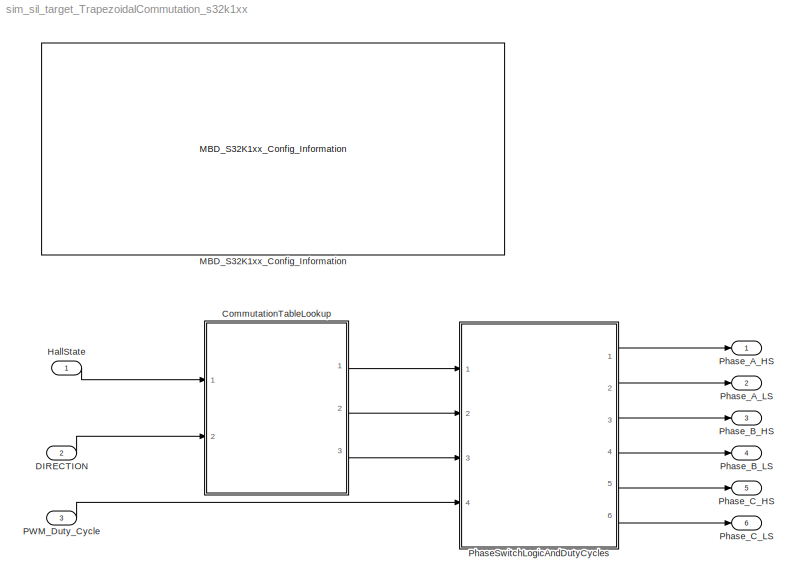
MODEL sim_sil_target_TrapezoidalCommutation_s32k1xx
KIND model
CONFIG InitFcn = mbd_s32k_consistency_checks(bdroot(gcs));
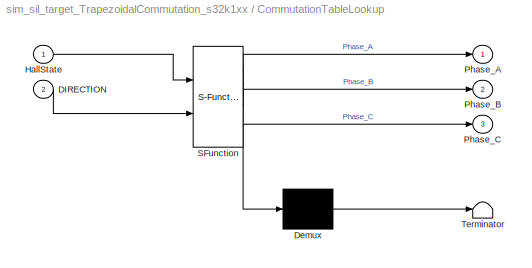
BLOCK [SubSystem] CommutationTableLookup
  ErrorFcn = Stateflow.Translate.translate
  PermitHierarchicalResolution = ExplicitOnly
  Ports = [2, 3]
  RequestExecContextInheritance = off
  SFBlockType = Chart
  SID = 24
  TreatAsAtomicUnit = on
  Variant = off
BLOCK [Demux] CommutationTableLookup/ Demux 
  Outputs = 1
  Ports = [1, 1]
  SID = 24::81
BLOCK [S-Function] CommutationTableLookup/ SFunction 
  EnableBusSupport = on
  FunctionName = sf_sfun
  PortCounts = [2 4]
  Ports = [2, 4]
  SFcnIsStateOwnerBlock = off
  SFunctionDeploymentMode = off
  SID = 24::80
  Tag = Stateflow S-Function sim_sil_target_TrapezoidalCommutation_s32k1xx 1
BLOCK [Terminator] CommutationTableLookup/ Terminator 
  SID = 24::82
BLOCK [Inport] CommutationTableLookup/DIRECTION
  IconDisplay = Port number
  Port = 2
  SID = 24::61
BLOCK [Inport] CommutationTableLookup/HallState
  IconDisplay = Port number
  SID = 24::50
BLOCK [Outport] CommutationTableLookup/Phase_A
  IconDisplay = Port number
  SID = 24::51
BLOCK [Outport] CommutationTableLookup/Phase_B
  IconDisplay = Port number
  Port = 2
  SID = 24::52
BLOCK [Outport] CommutationTableLookup/Phase_C
  IconDisplay = Port number
  Port = 3
  SID = 24::53
BLOCK [Inport] DIRECTION
  IconDisplay = Port number
  Port = 2
  SID = 22
BLOCK [Inport] HallState
  IconDisplay = Port number
  SID = 21
BLOCK [Reference] MBD_S32K1xx_Config_Information  REF=mbd_s32k1xx_ec_toolbox/MBD_S32K1xx_Config_Information
  ADC_PcrCheckEnDis = on
  AMMCLIB_PcrCheckEnDis = on
  CMP_PcrCheckEnDis = on
  CSEc_PcrCheckEnDis = on
  ConfigParams_PcrCheckEnDis = on
  FM_PcrCheckEnDis = on
  FTM_Dual_Edge_Inputs_PcrCheckEnDis = on
  FTM_Hall_Sensor_Inputs_PcrCheckEnDis = on
  FTM_Input_Edge_Inputs_PcrCheckEnDis = on
  FTM_PWM_PcrCheckEnDis = on
  FTM_Quadrature_Inputs_PcrCheckEnDis = on
  FlexCAN_PcrCheckEnDis = on
  FlexIO_PcrCheckEnDis = on
  GPIO_InputPcrCheckEnDis = on
  GPIO_OutputPcrCheckEnDis = on
  LIN_PcrCheckEnDis = on
  LPI2C_PcrCheckEnDis = on
  LPSPI_PcrCheckEnDis = on
  LPTMR_PcrCheckEnDis = on
  LPUART_PcrCheckEnDis = on
  ModelRef_PcrCheckEnDis = on
  PDB0_PcrCheckEnDis = on
  PIT_PcrCheckEnDis = on
  Ports = []
  Profile_PcrCheckEnDis = on
  RTC_PcrCheckEnDis = on
  SBC_PcrCheckEnDis = on
  SID = 1
  SourceBlock = mbd_s32k1xx_ec_toolbox/MBD_S32K1xx_Config_Information
  SourceType = MBDTBX_EC_S32K
  WDOG_PcrCheckEnDis = on
  config_params = target_mcu::S32K144-64KB_SRAM;;mcu_target_package::100-pin;;mcu_system_clock_freq::80;;mcu_xtal_freq::External 8;;mcu_steptick_timer::LPIT Channel 0;;mcu_steptick_prio::15;;ds_import_enable::on;;target_compiler::GCC;;target_memory::FLASH;;gcc_target_compile_opts::-c -mcpu=cortex-m4 -mthumb -mfloat-abi=hard -mfpu=fpv4-sp-d16 -O1 -g -gstrict-dwarf;;gcc_target_assemble_opts::-mcpu=cortex-m4 -mthumb -...<+1796ch>
  disp_str = Target : S32K144-64KB_SRAM\nPackage : 100-pin\nSystem clock : 80 MHz\nXTAL clock : External 8 MHz\nCompiler : GCC\nTarget Type : FLASH\nProcessor-In-Loop : (COM1, 57600, OpenSDA: E)\nStep Tick Interrupt Priority : 15
  ds_import_enable = on
  eDMA_PcrCheckEnDis = on
  gcc_target_assemble_opts = -mcpu=cortex-m4 -mthumb -mfloat-abi=hard -mfpu=fpv4-sp-d16 -g
  gcc_target_compile_opts = -mcpu=cortex-m4 -mthumb -mfloat-abi=hard -mfpu=fpv4-sp-d16 -O1 -g -gstrict-dwarf
  gcc_target_default_lcf = on
  gcc_target_link_opts = -mcpu=cortex-m4 -mthumb -mfloat-abi=hard -mfpu=fpv4-sp-d16
  gcc_target_user_lcf = S32K144_48_flash.ld
  ghs_target_assemble_opts = -cpu=cortexm4f -fpu=vfpv4_d16
  ghs_target_compile_opts = -cpu=cortexm4f -thumb -DARM_MATH_CM4 -fpu=vfpv4_d16 -fsingle -Ogeneral -Wundef -Wimplicit-int -Wshadow -Wtrigraphs --no_commons --gnu_asm -gnu99 -gdwarf-2 -G
  ghs_target_default_lcf = off
  ghs_target_link_opts = -cpu=cortexm4f -thumb -fpu=vfpv4_d16
  ghs_target_user_lcf = S32K144_48_flash.ld
  iar_target_assemble_opts = --cpu Cortex-M4F --thumb --fpu VFPv4_sp
  iar_target_compile_opts = --cpu=Cortex-M4F --thumb --fpu=VFPv4_sp -Ol -e --debug --dlib_config normal
  iar_target_default_lcf = off
  iar_target_link_opts = --no_exceptions --vfe --inline
  iar_target_user_lcf = S32K144_48_flash.icf
  mbdt_ver = 0
  mcu_steptick_prio = 15
  mcu_steptick_timer = LPIT Channel 0
  mcu_system_clock_freq = 80
  mcu_target_name = S32K144
  mcu_target_package = 100-LQFP
  mcu_target_sram_size = 48KB
  mcu_xtal_freq = External 8
  pil_download_enable = off
  pil_download_rate = 57600
  pil_opensda_drive = Custom
  pil_opensda_drive_custom = D
  pil_uart_instance = 0
  pil_uart_rx = PTA2: [LPUART0_RX | Receive]
  pil_uart_tx = PTA3: [LPUART0_TX | Transmit]
  rbl_com_port = Custom
  rbl_com_port_custom = COM1
  rbl_download_enable = off
  rbl_download_interface = OpenSDA
  rbl_restart_request = off
  rbl_start_delay = 5000000
  target_compiler = GCC
  target_memory = FLASH
BLOCK [Inport] PWM_Duty_Cycle
  IconDisplay = Port number
  Port = 3
  SID = 23
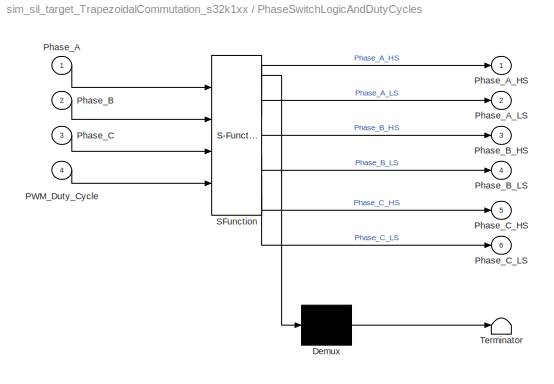
BLOCK [SubSystem] PhaseSwitchLogicAndDutyCycles
  ErrorFcn = Stateflow.Translate.translate
  PermitHierarchicalResolution = ExplicitOnly
  Ports = [4, 6]
  RequestExecContextInheritance = off
  SFBlockType = Chart
  SID = 25
  TreatAsAtomicUnit = on
  Variant = off
BLOCK [Demux] PhaseSwitchLogicAndDutyCycles/ Demux 
  Outputs = 1
  Ports = [1, 1]
  SID = 25::31
BLOCK [S-Function] PhaseSwitchLogicAndDutyCycles/ SFunction 
  EnableBusSupport = on
  FunctionName = sf_sfun
  PortCounts = [4 7]
  Ports = [4, 7]
  SFcnIsStateOwnerBlock = off
  SFunctionDeploymentMode = off
  SID = 25::30
  Tag = Stateflow S-Function sim_sil_target_TrapezoidalCommutation_s32k1xx 6
BLOCK [Terminator] PhaseSwitchLogicAndDutyCycles/ Terminator 
  SID = 25::32
BLOCK [Inport] PhaseSwitchLogicAndDutyCycles/PWM_Duty_Cycle
  IconDisplay = Port number
  Port = 4
  SID = 25::4
BLOCK [Inport] PhaseSwitchLogicAndDutyCycles/Phase_A
  IconDisplay = Port number
  SID = 25::1
BLOCK [Outport] PhaseSwitchLogicAndDutyCycles/Phase_A_HS
  IconDisplay = Port number
  SID = 25::8
BLOCK [Outport] PhaseSwitchLogicAndDutyCycles/Phase_A_LS
  IconDisplay = Port number
  Port = 2
  SID = 25::9
BLOCK [Inport] PhaseSwitchLogicAndDutyCycles/Phase_B
  IconDisplay = Port number
  Port = 2
  SID = 25::2
BLOCK [Outport] PhaseSwitchLogicAndDutyCycles/Phase_B_HS
  IconDisplay = Port number
  Port = 3
  SID = 25::10
BLOCK [Outport] PhaseSwitchLogicAndDutyCycles/Phase_B_LS
  IconDisplay = Port number
  Port = 4
  SID = 25::11
BLOCK [Inport] PhaseSwitchLogicAndDutyCycles/Phase_C
  IconDisplay = Port number
  Port = 3
  SID = 25::3
BLOCK [Outport] PhaseSwitchLogicAndDutyCycles/Phase_C_HS
  IconDisplay = Port number
  Port = 5
  SID = 25::12
BLOCK [Outport] PhaseSwitchLogicAndDutyCycles/Phase_C_LS
  IconDisplay = Port number
  Port = 6
  SID = 25::13
BLOCK [Outport] Phase_A_HS
  IconDisplay = Port number
  SID = 26
BLOCK [Outport] Phase_A_LS
  IconDisplay = Port number
  Port = 2
  SID = 27
BLOCK [Outport] Phase_B_HS
  IconDisplay = Port number
  Port = 3
  SID = 28
BLOCK [Outport] Phase_B_LS
  IconDisplay = Port number
  Port = 4
  SID = 29
BLOCK [Outport] Phase_C_HS
  IconDisplay = Port number
  Port = 5
  SID = 30
BLOCK [Outport] Phase_C_LS
  IconDisplay = Port number
  Port = 6
  SID = 31
LINE CommutationTableLookup/ Demux :1 -> CommutationTableLookup/ Terminator :1
LINE CommutationTableLookup/ SFunction :1 -> CommutationTableLookup/ Demux :1
LINE CommutationTableLookup/ SFunction :2 -> CommutationTableLookup/Phase_A:1
LINE CommutationTableLookup/ SFunction :3 -> CommutationTableLookup/Phase_B:1
LINE CommutationTableLookup/ SFunction :4 -> CommutationTableLookup/Phase_C:1
LINE CommutationTableLookup/DIRECTION:1 -> CommutationTableLookup/ SFunction :2
LINE CommutationTableLookup/HallState:1 -> CommutationTableLookup/ SFunction :1
LINE CommutationTableLookup:1 -> PhaseSwitchLogicAndDutyCycles:1
LINE CommutationTableLookup:2 -> PhaseSwitchLogicAndDutyCycles:2
LINE CommutationTableLookup:3 -> PhaseSwitchLogicAndDutyCycles:3
LINE DIRECTION:1 -> CommutationTableLookup:2
LINE HallState:1 -> CommutationTableLookup:1
LINE PWM_Duty_Cycle:1 -> PhaseSwitchLogicAndDutyCycles:4
LINE PhaseSwitchLogicAndDutyCycles/ Demux :1 -> PhaseSwitchLogicAndDutyCycles/ Terminator :1
LINE PhaseSwitchLogicAndDutyCycles/ SFunction :1 -> PhaseSwitchLogicAndDutyCycles/ Demux :1
LINE PhaseSwitchLogicAndDutyCycles/ SFunction :2 -> PhaseSwitchLogicAndDutyCycles/Phase_A_HS:1
LINE PhaseSwitchLogicAndDutyCycles/ SFunction :3 -> PhaseSwitchLogicAndDutyCycles/Phase_A_LS:1
LINE PhaseSwitchLogicAndDutyCycles/ SFunction :4 -> PhaseSwitchLogicAndDutyCycles/Phase_B_HS:1
LINE PhaseSwitchLogicAndDutyCycles/ SFunction :5 -> PhaseSwitchLogicAndDutyCycles/Phase_B_LS:1
LINE PhaseSwitchLogicAndDutyCycles/ SFunction :6 -> PhaseSwitchLogicAndDutyCycles/Phase_C_HS:1
LINE PhaseSwitchLogicAndDutyCycles/ SFunction :7 -> PhaseSwitchLogicAndDutyCycles/Phase_C_LS:1
LINE PhaseSwitchLogicAndDutyCycles/PWM_Duty_Cycle:1 -> PhaseSwitchLogicAndDutyCycles/ SFunction :4
LINE PhaseSwitchLogicAndDutyCycles/Phase_A:1 -> PhaseSwitchLogicAndDutyCycles/ SFunction :1
LINE PhaseSwitchLogicAndDutyCycles/Phase_B:1 -> PhaseSwitchLogicAndDutyCycles/ SFunction :2
LINE PhaseSwitchLogicAndDutyCycles/Phase_C:1 -> PhaseSwitchLogicAndDutyCycles/ SFunction :3
LINE PhaseSwitchLogicAndDutyCycles:1 -> Phase_A_HS:1
LINE PhaseSwitchLogicAndDutyCycles:2 -> Phase_A_LS:1
LINE PhaseSwitchLogicAndDutyCycles:3 -> Phase_B_HS:1
LINE PhaseSwitchLogicAndDutyCycles:4 -> Phase_B_LS:1
LINE PhaseSwitchLogicAndDutyCycles:5 -> Phase_C_HS:1
LINE PhaseSwitchLogicAndDutyCycles:6 -> Phase_C_LS:1
CHART CommutationTableLookup states=0 transitions=5
CHART PhaseSwitchLogicAndDutyCycles states=1 transitions=31
  STATE_LABEL 'Phase States:\\n0 = NC\\n1 = -Vdcb\\n2 = +Vdcb'
